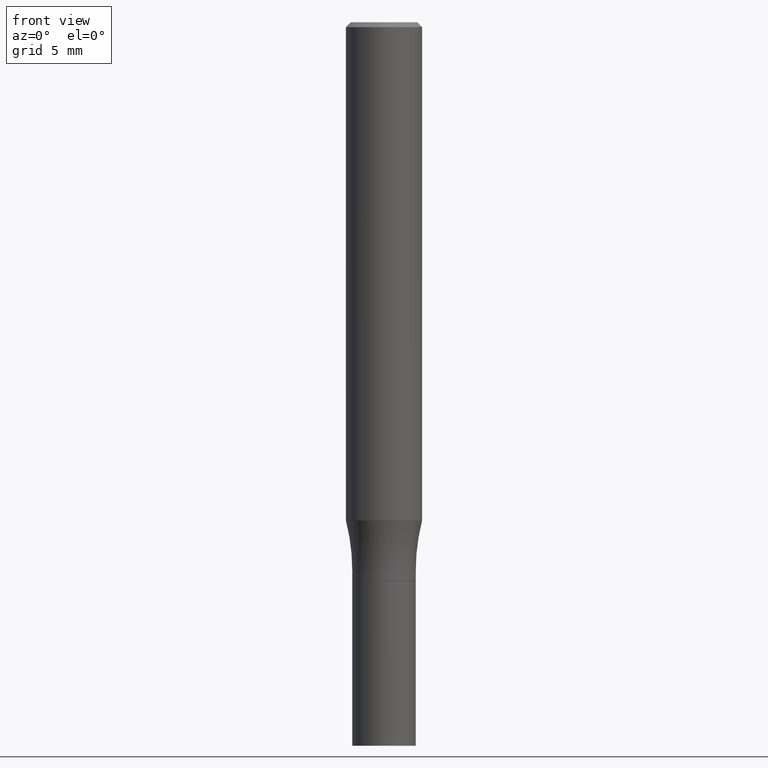
[diagram: clean part render]
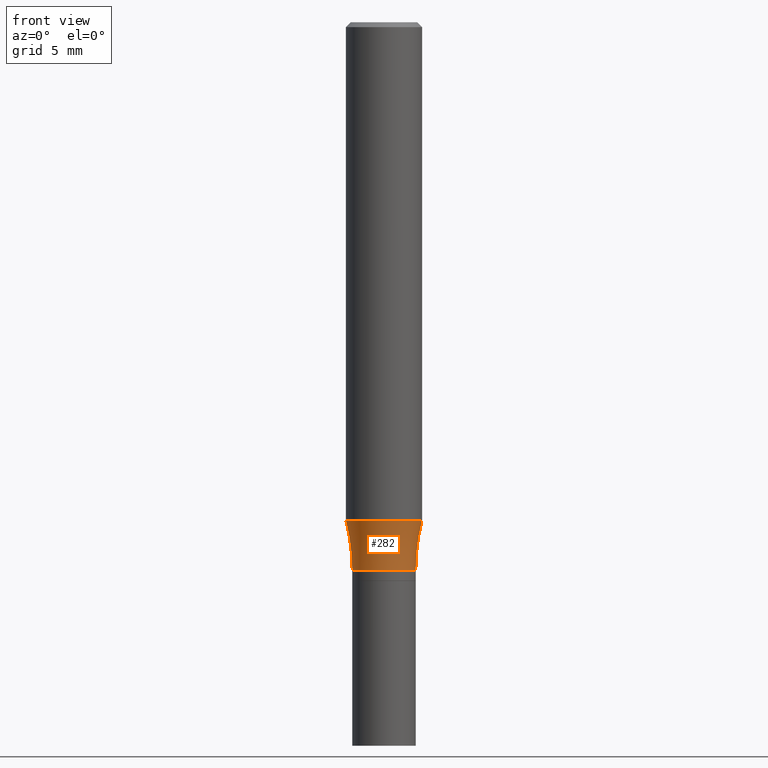
[diagram: same view with one face highlighted and labeled with its STEP entity id]
A machine part, front view. The second image highlights one B-rep face of the part: STEP entity #282.
In plain terms, the highlighted toroidal blend (fillet) surface has major radius 18.3756 mm and minor (blend) radius 15.875 mm.
Its self-contained STEP definition (entity closure, byte-faithful):
#15 = EDGE_CURVE ( 'NONE', #75, #240, #97, .T. ) ;
#24 = DIRECTION ( 'NONE',  ( 1.000000000000000000, -6.982962677686265133E-15, 0.000000000000000000 ) ) ;
#25 = CARTESIAN_POINT ( 'NONE',  ( 3.779747038470435747E-29, -5.396477034174070739E-15, -1.545612452267071113 ) ) ;
#34 = AXIS2_PLACEMENT_3D ( 'NONE', #369, #89, #299 ) ;
#75 = VERTEX_POINT ( 'NONE', #200 ) ;
#89 = DIRECTION ( 'NONE',  ( -2.445468806185136597E-29, 3.491481338843145583E-15, 1.000000000000000000 ) ) ;
#90 = EDGE_LOOP ( 'NONE', ( #458, #116, #326, #300 ) ) ;
#97 = CIRCLE ( 'NONE', #363, 0.1181000000000000383 ) ;
#107 = CARTESIAN_POINT ( 'NONE',  ( 0.09845000000000017626, -6.626831581124290238E-15, -1.701100000000000056 ) ) ;
#114 = CARTESIAN_POINT ( 'NONE',  ( -0.7234500000000001485, -7.989374836496292640E-16, -1.701100000000000056 ) ) ;
#116 = ORIENTED_EDGE ( 'NONE', *, *, #413, .T. ) ;
#121 = VERTEX_POINT ( 'NONE', #122 ) ;
#122 = CARTESIAN_POINT ( 'NONE',  ( -0.09845000000000017626, -4.898577822695823688E-15, -1.701100000000000056 ) ) ;
#134 = AXIS2_PLACEMENT_3D ( 'NONE', #461, #136, #392 ) ;
#136 = DIRECTION ( 'NONE',  ( -2.445468806185136597E-29, 3.491481338843145583E-15, 1.000000000000000000 ) ) ;
#148 = CIRCLE ( 'NONE', #34, 0.09845000000000017626 ) ;
#158 = CARTESIAN_POINT ( 'NONE',  ( 0.7234500000000001485, -1.099118325467820614E-14, -1.701100000000000056 ) ) ;
#175 = CIRCLE ( 'NONE', #391, 0.6250000000000000000 ) ;
#187 = DIRECTION ( 'NONE',  ( -1.000000000000000000, 7.105427357601001859E-15, 0.000000000000000000 ) ) ;
#200 = CARTESIAN_POINT ( 'NONE',  ( -0.1181000000000000660, -4.557326063241392542E-15, -1.545612452267071113 ) ) ;
#201 = EDGE_CURVE ( 'NONE', #121, #456, #148, .T. ) ;
#204 = CIRCLE ( 'NONE', #229, 0.6250000000000000000 ) ;
#229 = AXIS2_PLACEMENT_3D ( 'NONE', #158, #452, #24 ) ;
#234 = DIRECTION ( 'NONE',  ( -2.445468806185136597E-29, 3.491481338843145583E-15, 1.000000000000000000 ) ) ;
#240 = VERTEX_POINT ( 'NONE', #432 ) ;
#243 = FACE_OUTER_BOUND ( 'NONE', #90, .T. ) ;
#282 = ADVANCED_FACE ( 'NONE', ( #243 ), #318, .F. ) ;
#298 = DIRECTION ( 'NONE',  ( 1.000000000000000000, -6.982962677686262766E-15, 0.000000000000000000 ) ) ;
#299 = DIRECTION ( 'NONE',  ( 1.000000000000000000, -6.982962677686272233E-15, 0.000000000000000000 ) ) ;
#300 = ORIENTED_EDGE ( 'NONE', *, *, #437, .F. ) ;
#318 = TOROIDAL_SURFACE ( 'NONE', #134, 0.7234500000000001485, 0.6250000000000000000 ) ;
#326 = ORIENTED_EDGE ( 'NONE', *, *, #201, .T. ) ;
#361 = DIRECTION ( 'NONE',  ( 7.105427357601001859E-15, 1.000000000000000000, -3.491481338843145583E-15 ) ) ;
#363 = AXIS2_PLACEMENT_3D ( 'NONE', #25, #234, #298 ) ;
#369 = CARTESIAN_POINT ( 'NONE',  ( 4.159986986201535705E-29, -5.939358905506075311E-15, -1.701100000000000056 ) ) ;
#391 = AXIS2_PLACEMENT_3D ( 'NONE', #114, #361, #187 ) ;
#392 = DIRECTION ( 'NONE',  ( 1.000000000000000000, -6.982962677686266711E-15, 4.883557194083112901E-29 ) ) ;
#413 = EDGE_CURVE ( 'NONE', #75, #121, #175, .T. ) ;
#432 = CARTESIAN_POINT ( 'NONE',  ( 0.1181000000000000660, -6.221164926408819001E-15, -1.545612452267071113 ) ) ;
#437 = EDGE_CURVE ( 'NONE', #240, #456, #204, .T. ) ;
#452 = DIRECTION ( 'NONE',  ( -6.982962677686266711E-15, -1.000000000000000000, 3.491481338843145583E-15 ) ) ;
#456 = VERTEX_POINT ( 'NONE', #107 ) ;
#458 = ORIENTED_EDGE ( 'NONE', *, *, #15, .F. ) ;
#461 = CARTESIAN_POINT ( 'NONE',  ( 4.159986986201535705E-29, -5.939358905506075311E-15, -1.701100000000000056 ) ) ;